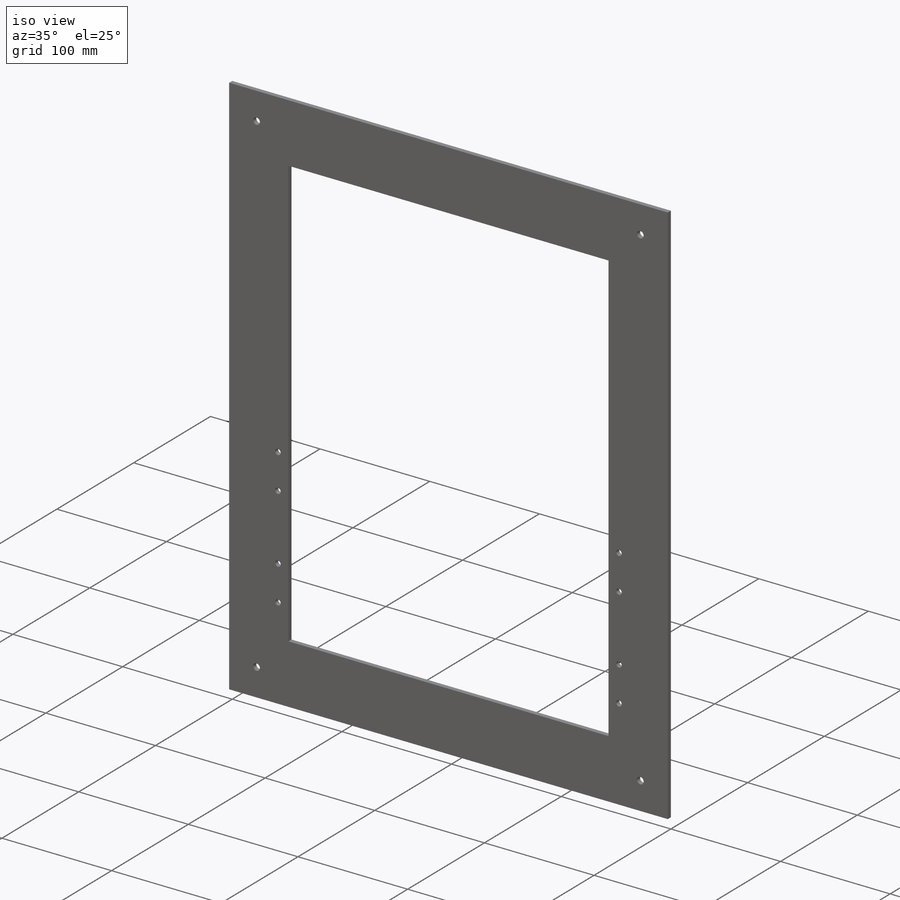
[diagram: iso view]
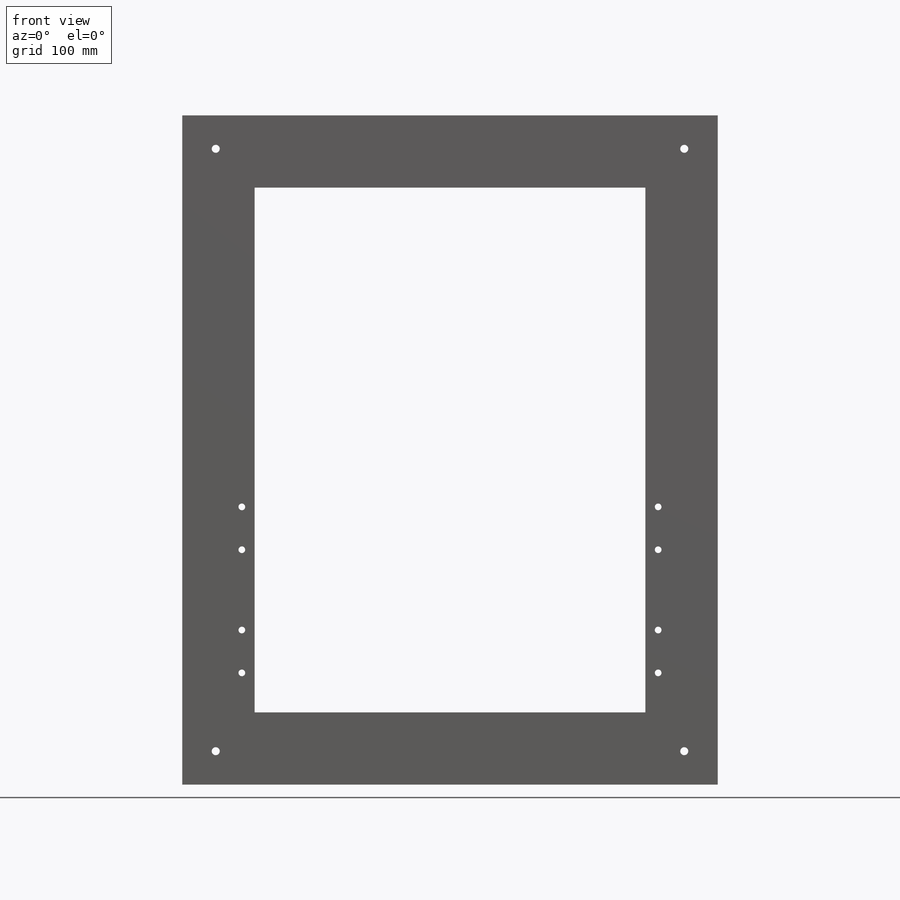
[diagram: front view]
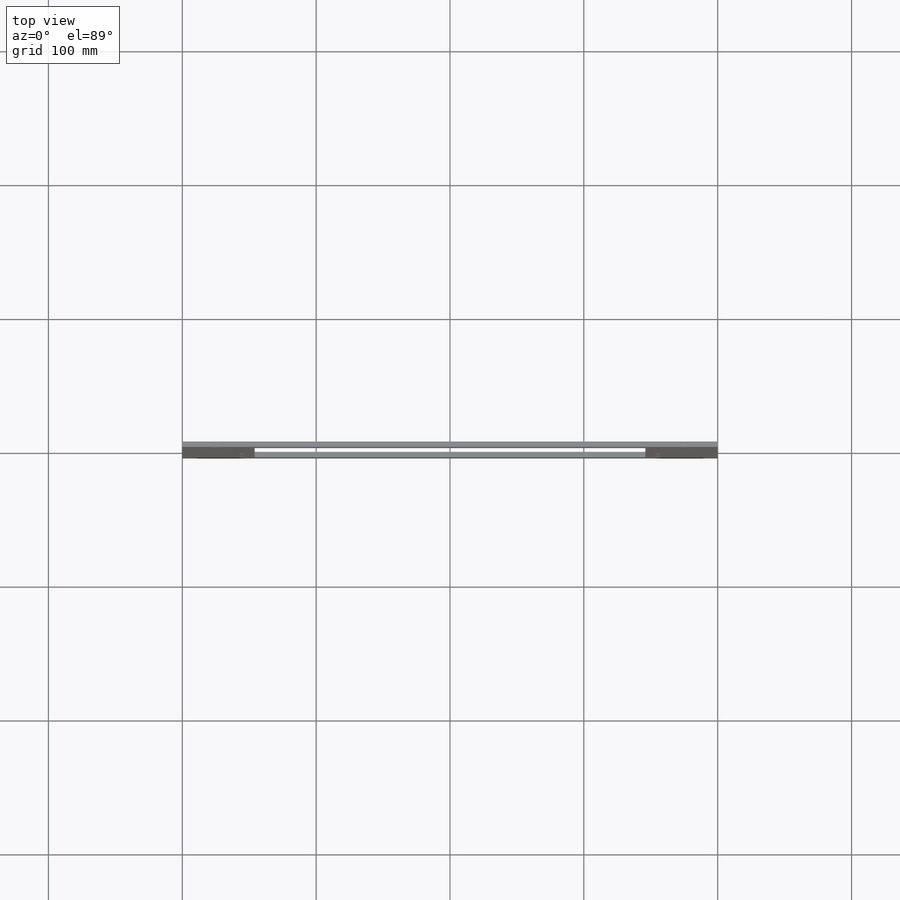
[diagram: top view]
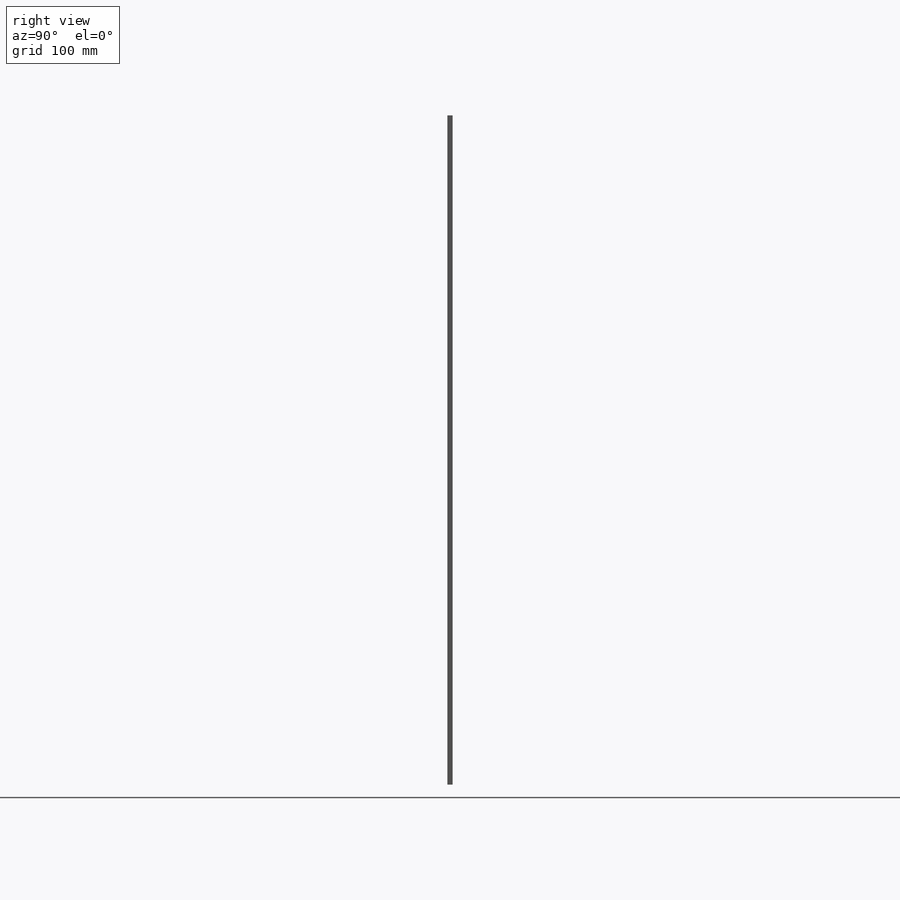
[diagram: right view]
SOLIDWORKS PART (.sldprt)
format: sldprt  version: not decoded by parser v0  size: 286,720 bytes
history: native  units: mm
features: sketch x5, plane x4, cut_extrude x4, material x1, extrude x1, mirror x1 (+9 scaffold rows collapsed)
feature tree (25):
  scaffold x9  (default folders/planes/origin — collapsed)
  material  "Material <not specified>"
  plane  "Plan de face"
  plane  "Plan de dessus"
  plane  "Plan de droite"
  sketch  "Sketch1"  dims[D1=500.0mm D2=400.0mm]
  extrude  "Boss-Extrude1"  Depth=4mm
  sketch  "Sketch3"  dims[D1=54.0mm D2=54.0mm D3=54.0mm D4=54.0mm]
  cut_extrude  "Cut-Extrude1"  Depth=10mm
  sketch  "Sketch4"  dims[D1=5.0mm D2=5.0mm D3=8.66mm D4=~15.55115mm D5=66.0mm D6=8.0mm D7=32.0mm]
  cut_extrude  "Cut-Extrude2"  [1 undecoded]
  sketch  "Sketch6"  dims[D1=5.0mm D2=5.0mm D3=5.0mm D4=5.0mm D5=83.5mm D6=32.0mm D7=60.0mm D8=32.0mm D9=9.5mm]
  cut_extrude  "Cut-Extrude3"  [1 undecoded]
  plane  "Plane1"
  mirror  "Mirror1"
  sketch  "Sketch7"  dims[c1.D1=6.0mm c1.D6=6.0mm c1.D8=6.0mm c1.D12=6.0mm c1.D2=25.0mm c1.D3=25.0mm c1.D4=25.0mm c1.D5=~25.380202mm c2.D5=90.0deg c3.D5=~25.380202mm c4.D5=90.0deg c5.D5=25.0mm c5.D7=25.0mm c5.D9=25.0mm c5.D10=25.0mm c5.D11=25.0mm]
  cut_extrude  "Cut-Extrude4"  Depth=4mm
decode coverage: 8 of 11 modeling features carry decoded parameters
note: ~ marks probable driven/reference dimensions
note: 2 parameter values undecoded
note: suppression state not decoded; provenance and decode notes live in map.json
